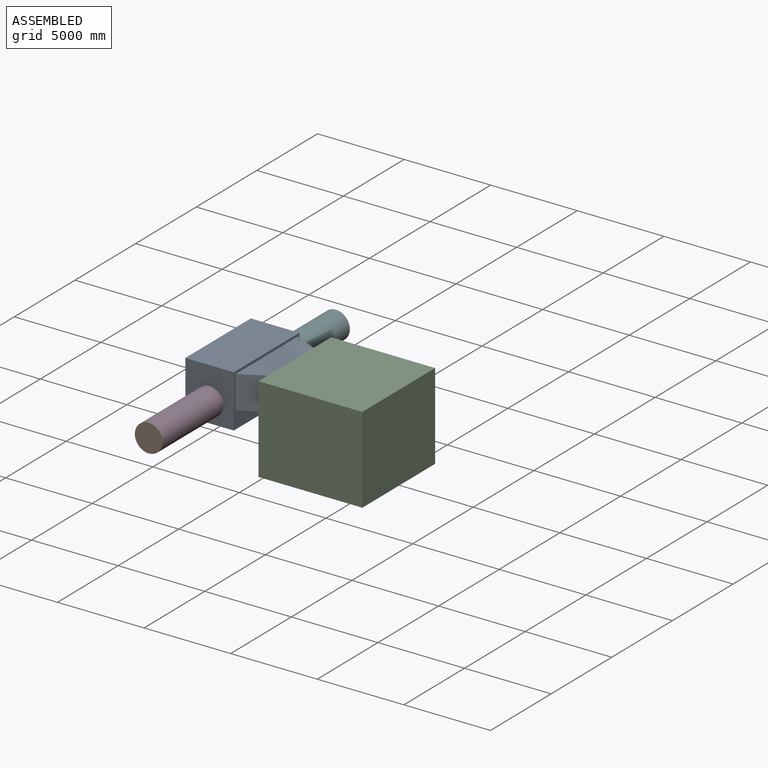
[diagram: assembled view]
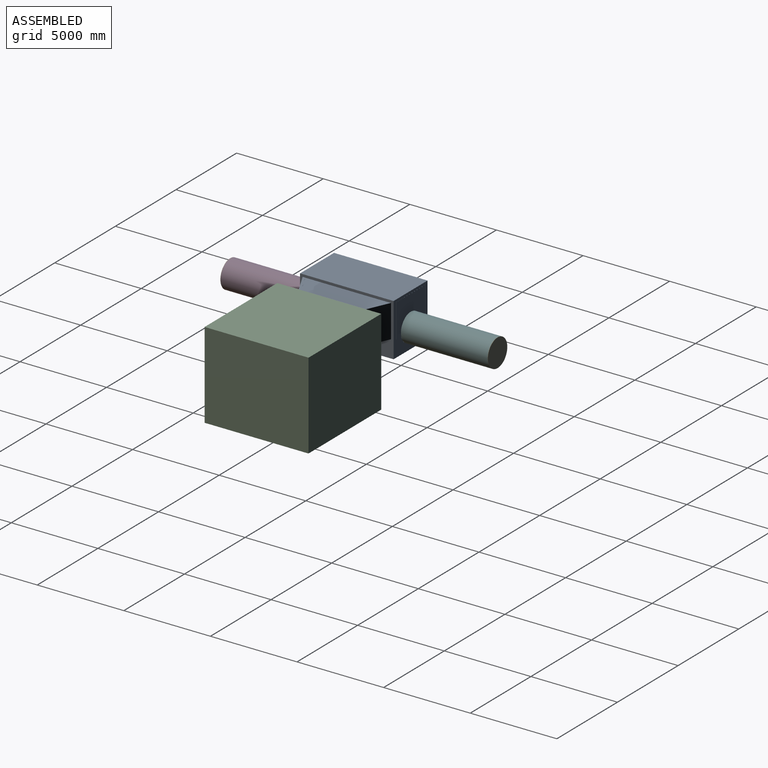
[diagram: assembled view, second angle]
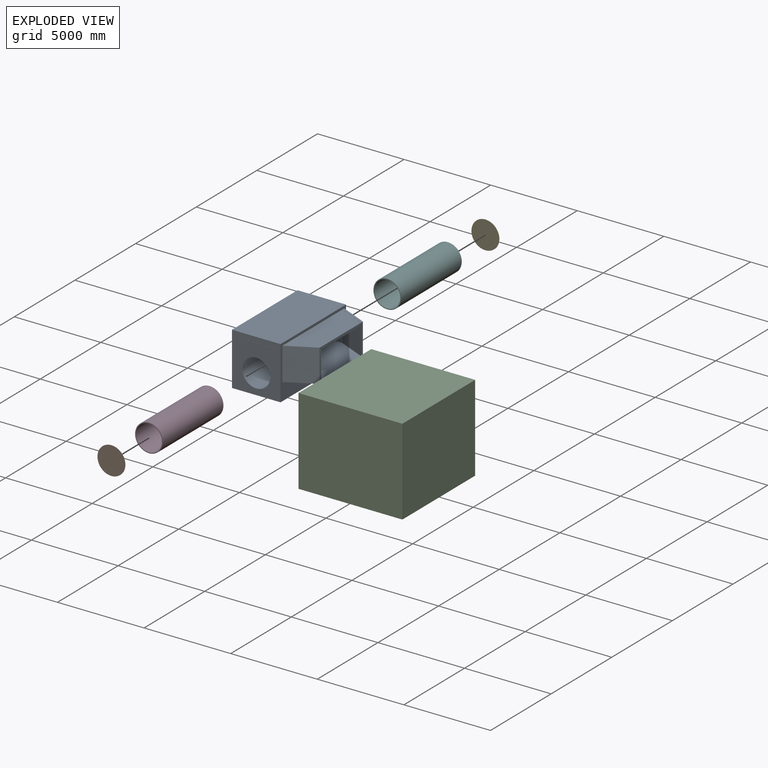
[diagram: exploded view]
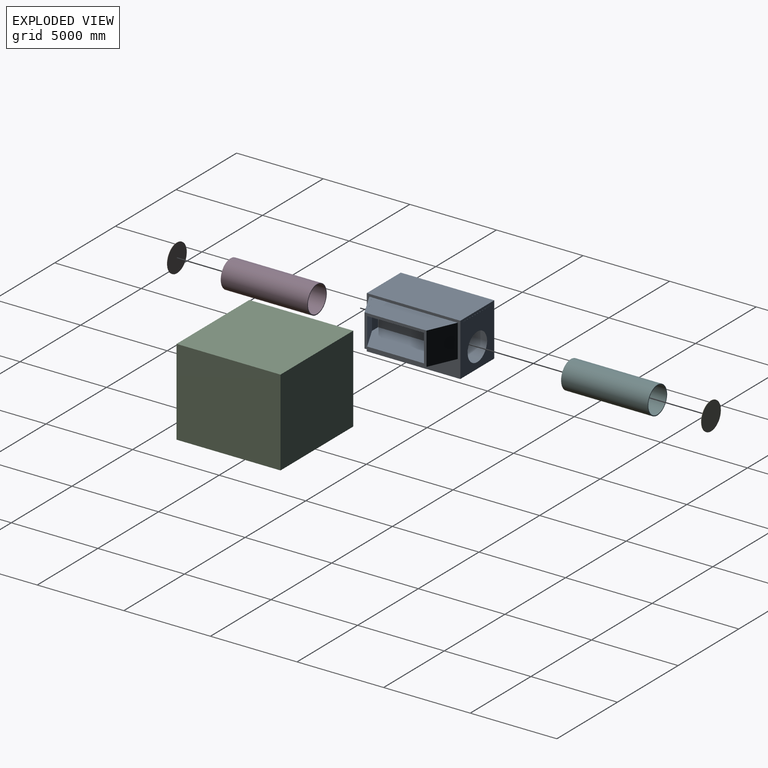
[diagram: exploded view, second angle]
ASSEMBLY  parts=6 mates=5
PART A: 47 faces, bbox 4370x5410x3040 mm
  f0: plane 5400x3040mm, normal (1,0,0), area 6775500mm2, adj f5,f8,f9,f10,f37,f38,f40,f41
  f1: plane 3580x1895mm, normal (1,0,0), area 1552500mm2, adj f18,f24,f37,f38,f39,f40,f41,f42
  f2: plane 1590x500mm, normal (0,1,0), area 782500mm2, adj f17,f18,f24,f25,f34,f35,f36,f39
  f3: plane 1590x500mm, normal (0,-1,0), area 782500mm2, adj f17,f18,f24,f25,f34,f35,f36,f43
  f4: plane 340.06x5mm, normal (0,0,-1), area 1700.3mm2, adj f10,f14,f15,f29
  f5: plane 3040x2800mm, normal (0,-1,0), area 3503325mm2, adj f0,f7,f8,f9,f27,f28,f29,f30
  f6: plane 1800x1590mm, normal (0,-1,0), area 1693940.4mm2, adj f16,f17,f18,f19,f20,f21,f22,f23
  f7: plane 5400x3040mm, normal (-1,0,0), area 16416000mm2, adj f5,f8,f9,f10
  f8: plane 5400x2800mm, normal (0,0,-1), area 15120000mm2, adj f0,f5,f7,f10
  f9: plane 5400x2800mm, normal (0,0,1), area 15120000mm2, adj f0,f5,f7,f10
  f10: plane 3040x2800mm, normal (0,1,0), area 3342057.8mm2, adj f0,f4,f7,f8,f9,f11,f12,f13
  f11: plane 2308.15x5mm, normal (0,0,1), area 11540.7mm2, adj f10,f12,f14,f15
  f12: plane 1937.33x5mm, normal (1,0,0), area 9686.6mm2, adj f10,f11,f13,f15
  f13: plane 415.74x5mm, normal (0,0,-1), area 2078.7mm2, adj f10,f12,f15,f29
  f14: plane 1937.33x5mm, normal (-1,0,0), area 9686.6mm2, adj f4,f10,f11,f15
  f15: plane 2308.15x1937.33mm, normal (0,1,0), area 3159322.9mm2, adj f4,f11,f12,f13,f14,f29
  f16: plane 5400x620mm, normal (1,0,0), area 3348000mm2, adj f6,f18,f20,f26
  f17: plane 5400x870mm, normal (-1,0,0), area 2413426.9mm2, adj f2,f3,f6,f18,f21,f26,f35
  f18: plane 5400x3870mm, normal (0,0,-1), area 18462800mm2, adj f1,f2,f3,f6,f16,f17,f26,f39
  f19: plane 5400x870mm, normal (1,0,0), area 4698000mm2, adj f6,f20,f26,f29
  f20: plane 5400x100mm, normal (0.71,0,0.71), area 763675.3mm2, adj f6,f16,f19,f26
  f21: plane 5400x50mm, normal (0,0,1), area 270000mm2, adj f6,f17,f23,f26
  f22: plane 5400x670mm, normal (-1,0,0), area 3618000mm2, adj f6,f23,f26,f29
  f23: plane 5400x50mm, normal (-0.71,0,0.71), area 381837.7mm2, adj f6,f21,f22,f26
  f24: plane 4800x2070mm, normal (0,0,1), area 8742800mm2, adj f1,f2,f3,f25,f39,f43
  f25: plane 4800x614.05mm, normal (1,0,0), area 2947426.9mm2, adj f2,f3,f24,f34
  f26: plane 1800x1590mm, normal (0,1,0), area 1693940.4mm2, adj f16,f17,f18,f19,f20,f21,f22,f23
  f27: plane 1800x5mm, normal (-1,0,0), area 9000mm2, adj f5,f28,f32,f33
  f28: plane 330.86x5mm, normal (0,0,-1), area 1654.3mm2, adj f5,f27,f29,f33
  f29: cylinder r=800mm len=5410mm, axis (0,1,0), area 13600791.9mm2, adj f4,f5,f6,f10,f13,f15,f19,f22
  f30: plane 519.95x5mm, normal (0,0,-1), area 2599.8mm2, adj f5,f29,f31,f33
  f31: plane 1800x5mm, normal (1,0,0), area 9000mm2, adj f5,f30,f32,f33
  f32: plane 2400x5mm, normal (0,0,1), area 12000mm2, adj f5,f27,f31,f33
  f33: plane 2400x1800mm, normal (0,-1,0), area 2998055.7mm2, adj f27,f28,f29,f30,f31,f32
  f34: plane 4800x25mm, normal (0,0,-1), area 120000mm2, adj f2,f3,f25,f36
  f35: plane 4800x25mm, normal (0,0,1), area 120000mm2, adj f2,f3,f17,f36
  f36: plane 4800x500mm, normal (1,0,0), area 2400000mm2, adj f2,f3,f34,f35
  f37: plane 4800x1570mm, normal (0,0,1), area 6342800mm2, adj f0,f1,f40,f44
  f38: plane 5100x1570mm, normal (0,0,-1), area 6813800mm2, adj f0,f1,f41,f45
  f39: plane 1590x1570mm, normal (-0.46,0.89,0), area 2816275.6mm2, adj f1,f2,f18,f24
  f40: plane 1570x820mm, normal (-0.46,0.89,0), area 8856.2mm2, adj f0,f1,f37,f42
  f41: plane 1895x1570mm, normal (0.46,-0.89,0), area 3356504.5mm2, adj f0,f1,f38,f42
  f42: plane 1570x970mm, normal (0,0,1), area 235500mm2, adj f0,f1,f40,f41
  f43: plane 1590x1570mm, normal (-0.41,-0.91,0), area 2733181.8mm2, adj f1,f3,f18,f24
  f44: plane 1570x700mm, normal (-0.41,-0.91,0), area 8594.9mm2, adj f0,f1,f37,f46
  f45: plane 1895x1570mm, normal (0.41,0.91,0), area 3257471.4mm2, adj f0,f1,f38,f46
  f46: plane 1570x850mm, normal (0,0,1), area 235500mm2, adj f0,f1,f44,f45
PART B: 3 faces, bbox 1600x20x1600 mm
  f0: cylinder r=800mm len=1600mm, axis (0,1,0), area 100531mm2, adj f1,f2
  f1: plane 1600x1600mm, normal (0,-1,0), area 2010619.3mm2, adj f0
  f2: plane 1600x1600mm, normal (0,1,0), area 2010619.3mm2, adj f0
PART C: 16 faces, bbox 6000x6000x5000 mm
  f0: plane 6000x6000mm, normal (0,0,1), area 36000000mm2, adj f1,f3,f4,f5
  f1: plane 6000x5000mm, normal (-1,0,0), area 30000000mm2, adj f0,f2,f4,f5
  f2: plane 6000x6000mm, normal (0,0,-1), area 36000000mm2, adj f1,f3,f4,f5
  f3: plane 6000x5000mm, normal (1,0,0), area 30000000mm2, adj f0,f2,f4,f5
  f4: plane 6000x5000mm, normal (0,-1,0), area 30000000mm2, adj f0,f1,f2,f3
  f5: plane 6000x5000mm, normal (0,1,0), area 24031800mm2, adj f0,f1,f2,f3,f6,f7,f8,f9
  f6: plane 3430x100mm, normal (0,0,-1), area 343000mm2, adj f5,f7,f9,f10
  f7: plane 1740x100mm, normal (1,0,0), area 174000mm2, adj f5,f6,f8,f10
  f8: plane 3430x100mm, normal (0,0,1), area 343000mm2, adj f5,f7,f9,f10
  f9: plane 1740x100mm, normal (-1,0,0), area 174000mm2, adj f5,f6,f8,f10
  f10: plane 5800x4800mm, normal (0,-1,0), area 21871800mm2, adj f6,f7,f8,f9,f11,f12,f13,f14
  f11: plane 5800x5800mm, normal (0,0,-1), area 33640000mm2, adj f10,f12,f14,f15
  f12: plane 5800x4800mm, normal (1,0,0), area 27840000mm2, adj f10,f11,f13,f15
  f13: plane 5800x5800mm, normal (0,0,1), area 33640000mm2, adj f10,f12,f14,f15
  f14: plane 5800x4800mm, normal (-1,0,0), area 27840000mm2, adj f10,f11,f13,f15
  f15: plane 5800x4800mm, normal (0,1,0), area 27840000mm2, adj f11,f12,f13,f14
PART D: 4 faces, bbox 1600x5000x1600 mm
  f0: cylinder r=750mm len=5000mm, axis (0,1,0), area 23561944.9mm2, adj f2,f3
  f1: cylinder r=800mm len=5000mm, axis (0,1,0), area 25132741.2mm2, adj f2,f3
  f2: plane 1600x1600mm, normal (0,-1,0), area 243473.4mm2, adj f0,f1
  f3: plane 1600x1600mm, normal (0,1,0), area 243473.4mm2, adj f0,f1
PART E: same geometry as B
PART F: same geometry as D
PLACE A t=(729.53,7041.37,1179.09)mm fixed
PLACE B t=(2129.53,-3358.63,2329.09)mm
PLACE C rot(axis=(0,0,1),90deg) t=(5099.53,4401.37,2256.59)mm
PLACE D t=(2129.53,1641.37,2329.09)mm
PLACE E t=(2129.53,12066.37,2329.09)mm
PLACE F t=(2129.53,12046.37,2329.09)mm
MATE fastened E.f0 <-> F.f0  axis (0,-1,0) through (2129.53,12046.37,2329.09)mm
MATE fastened B.f0 <-> D.f0  axis (0,1,0) through (2129.53,-3358.63,2329.09)mm
MATE fastened F.f0 <-> A.f29  axis (0,-1,0) through (2129.53,7046.37,2329.09)mm
MATE fastened C.f5 <-> A.f1  axis (-1,0,0) through (5099.53,4401.37,3126.59)mm
MATE fastened D.f0 <-> A.f29  axis (0,1,0) through (2129.53,1641.37,2329.09)mm
